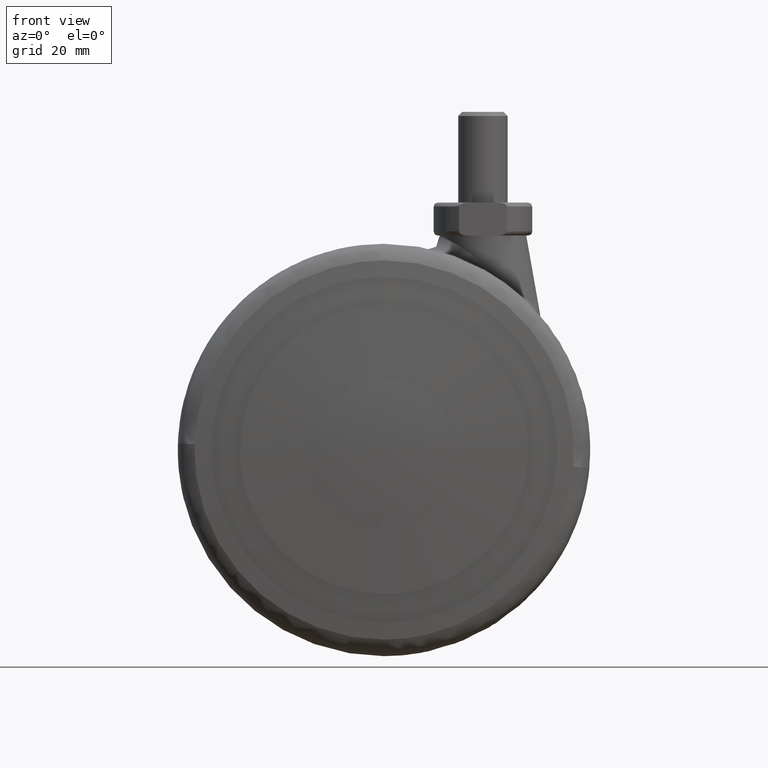
[diagram: clean part render]
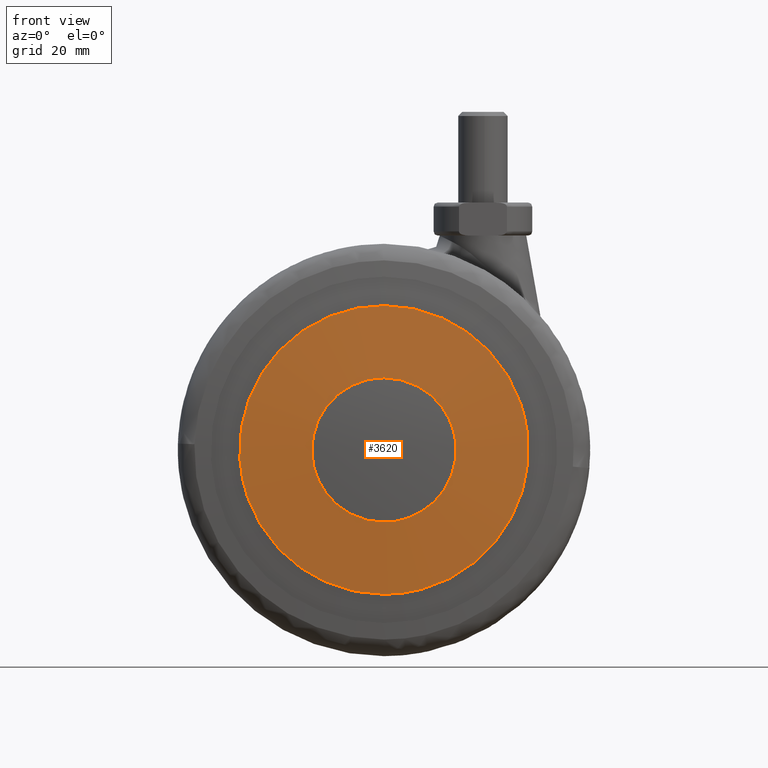
[diagram: same view with one face highlighted and labeled with its STEP entity id]
A machine part, front view. The second image highlights one B-rep face of the part: STEP entity #3620.
In plain terms, the highlighted face is a freeform B-spline surface patch.
Its self-contained STEP definition (entity closure, byte-faithful):
#2124=CARTESIAN_POINT('',(17.377664456268601,-30.499999820000049,2.065598838515968));
#2125=VERTEX_POINT('',#2124);
#2126=CARTESIAN_POINT('',(0.0,-30.499999820000049,-17.499998833836450));
#2127=VERTEX_POINT('',#2126);
#2128=CARTESIAN_POINT('',(17.377664456268594,-30.499999820000049,2.065598838515969));
#2129=CARTESIAN_POINT('',(17.499997765615014,-30.499999820000049,1.036421897906469));
#2130=CARTESIAN_POINT('',(17.499997798101671,-30.499999820000049,-0.000000123112778));
#2131=CARTESIAN_POINT('',(17.499998346639302,-30.499999820000046,-17.499998891747214));
#2132=CARTESIAN_POINT('',(0.0,-30.499999820000049,-17.499998833836450));
#2140=(BOUNDED_CURVE()B_SPLINE_CURVE(2,(#2128,#2129,#2130,#2131,#2132),.UNSPECIFIED.,.F.,.U.)B_SPLINE_CURVE_WITH_KNOTS((3,2,3),(0.229562473514925,0.250000000000000,0.500000000000000),.UNSPECIFIED.)CURVE()GEOMETRIC_REPRESENTATION_ITEM()RATIONAL_B_SPLINE_CURVE((0.956026754186476,0.976055948332805,1.0,0.707106781186547,1.0))REPRESENTATION_ITEM(''));
#2141=EDGE_CURVE('',#2125,#2127,#2140,.T.);
#2182=CARTESIAN_POINT('',(-17.467357814812079,-30.499999819976811,-1.068331168380305));
#2183=VERTEX_POINT('',#2182);
#2189=CARTESIAN_POINT('',(0.0,-30.499999820000049,-17.499998833836450));
#2190=CARTESIAN_POINT('',(-16.462371645839585,-30.499999819988442,-17.499998800113580));
#2191=CARTESIAN_POINT('',(-17.467357814812075,-30.499999819976814,-1.068331168380304));
#2199=(BOUNDED_CURVE()B_SPLINE_CURVE(2,(#2189,#2190,#2191),.UNSPECIFIED.,.F.,.U.)B_SPLINE_CURVE_WITH_KNOTS((3,3),(0.500000000000000,0.739333141382352),.UNSPECIFIED.)CURVE()GEOMETRIC_REPRESENTATION_ITEM()RATIONAL_B_SPLINE_CURVE((1.0,0.719603783407151,0.976072425605445))REPRESENTATION_ITEM(''));
#2200=EDGE_CURVE('',#2127,#2183,#2199,.T.);
#2223=CARTESIAN_POINT('',(0.0,-30.499999820000049,17.499998833836450));
#2224=VERTEX_POINT('',#2223);
#2225=CARTESIAN_POINT('',(0.0,-30.499999820000049,17.499998833836450));
#2226=CARTESIAN_POINT('',(15.543052619787943,-30.499999820000046,17.499998768634430));
#2227=CARTESIAN_POINT('',(17.377664456268594,-30.499999820000049,2.065598838515969));
#2235=(BOUNDED_CURVE()B_SPLINE_CURVE(2,(#2225,#2226,#2227),.UNSPECIFIED.,.F.,.U.)B_SPLINE_CURVE_WITH_KNOTS((3,3),(0.0,0.229562473514925),.UNSPECIFIED.)CURVE()GEOMETRIC_REPRESENTATION_ITEM()RATIONAL_B_SPLINE_CURVE((1.0,0.731050832853743,0.956026754186476))REPRESENTATION_ITEM(''));
#2236=EDGE_CURVE('',#2224,#2125,#2235,.T.);
#2238=CARTESIAN_POINT('',(-17.467357814812075,-30.499999819976814,-1.068331168380304));
#2239=CARTESIAN_POINT('',(-17.499997746936184,-30.499999819977155,-0.534664162774841));
#2240=CARTESIAN_POINT('',(-17.499997763781881,-30.499999819977511,0.000000065446225));
#2241=CARTESIAN_POINT('',(-17.499998315155445,-30.499999819989128,17.499998865559796));
#2242=CARTESIAN_POINT('',(0.0,-30.499999820000049,17.499998833836450));
#2250=(BOUNDED_CURVE()B_SPLINE_CURVE(2,(#2238,#2239,#2240,#2241,#2242),.UNSPECIFIED.,.F.,.U.)B_SPLINE_CURVE_WITH_KNOTS((3,2,3),(0.739333141382352,0.750000000000000,1.0),.UNSPECIFIED.)CURVE()GEOMETRIC_REPRESENTATION_ITEM()RATIONAL_B_SPLINE_CURVE((0.976072425605445,0.987502997779396,1.0,0.707106781186547,1.0))REPRESENTATION_ITEM(''));
#2251=EDGE_CURVE('',#2183,#2224,#2250,.T.);
#2310=CARTESIAN_POINT('',(34.755336304148187,-29.429466281998341,4.131173971761895));
#2311=VERTEX_POINT('',#2310);
#2312=CARTESIAN_POINT('',(0.0,-29.429466281994149,-35.0));
#2313=VERTEX_POINT('',#2312);
#2314=CARTESIAN_POINT('',(34.755336304148194,-29.429466281998337,4.131173971761895));
#2315=CARTESIAN_POINT('',(34.999999999999993,-29.429466281994156,2.072831939068230));
#2316=CARTESIAN_POINT('',(35.0,-29.429466281994149,0.0));
#2317=CARTESIAN_POINT('',(34.999999999999993,-29.429466281994156,-34.999999999999993));
#2318=CARTESIAN_POINT('',(0.0,-29.429466281994149,-35.0));
#2326=(BOUNDED_CURVE()B_SPLINE_CURVE(2,(#2314,#2315,#2316,#2317,#2318),.UNSPECIFIED.,.F.,.U.)B_SPLINE_CURVE_WITH_KNOTS((3,2,3),(0.229562591392399,0.250000000000000,0.500000000000000),.UNSPECIFIED.)CURVE()GEOMETRIC_REPRESENTATION_ITEM()RATIONAL_B_SPLINE_CURVE((0.956026985231279,0.976056086434856,1.0,0.707106781186548,1.0))REPRESENTATION_ITEM(''));
#2327=EDGE_CURVE('',#2311,#2313,#2326,.T.);
#2329=CARTESIAN_POINT('',(-34.934720181211787,-29.429466281988251,-2.136662317515716));
#2330=VERTEX_POINT('',#2329);
#2331=CARTESIAN_POINT('',(0.0,-29.429466281994149,-35.0));
#2332=CARTESIAN_POINT('',(-32.924746868442831,-29.429466281994159,-34.999999999999993));
#2333=CARTESIAN_POINT('',(-34.934720181211787,-29.429466281988248,-2.136662317515716));
#2341=(BOUNDED_CURVE()B_SPLINE_CURVE(2,(#2331,#2332,#2333),.UNSPECIFIED.,.F.,.U.)B_SPLINE_CURVE_WITH_KNOTS((3,3),(0.500000000000000,0.739333142846890),.UNSPECIFIED.)CURVE()GEOMETRIC_REPRESENTATION_ITEM()RATIONAL_B_SPLINE_CURVE((1.0,0.719603781691338,0.976072428744235))REPRESENTATION_ITEM(''));
#2342=EDGE_CURVE('',#2313,#2330,#2341,.T.);
#2409=CARTESIAN_POINT('',(0.0,-29.429466281994149,35.0));
#2410=VERTEX_POINT('',#2409);
#2411=CARTESIAN_POINT('',(0.0,-29.429466281994149,35.0));
#2412=CARTESIAN_POINT('',(31.086130242943007,-29.429466281994166,35.0));
#2413=CARTESIAN_POINT('',(34.755336304148187,-29.429466281998344,4.131173971761895));
#2421=(BOUNDED_CURVE()B_SPLINE_CURVE(2,(#2411,#2412,#2413),.UNSPECIFIED.,.F.,.U.)B_SPLINE_CURVE_WITH_KNOTS((3,3),(0.0,0.229562591392399),.UNSPECIFIED.)CURVE()GEOMETRIC_REPRESENTATION_ITEM()RATIONAL_B_SPLINE_CURVE((1.0,0.731050694751692,0.956026985231279))REPRESENTATION_ITEM(''));
#2422=EDGE_CURVE('',#2410,#2311,#2421,.T.);
#2456=CARTESIAN_POINT('',(-34.934720181211787,-29.429466281988248,-2.136662317515716));
#2457=CARTESIAN_POINT('',(-35.000000000000007,-29.429466281994156,-1.069328381085897));
#2458=CARTESIAN_POINT('',(-35.0,-29.429466281994149,0.0));
#2459=CARTESIAN_POINT('',(-34.999999999999993,-29.429466281994156,34.999999999999993));
#2460=CARTESIAN_POINT('',(0.0,-29.429466281994149,35.0));
#2468=(BOUNDED_CURVE()B_SPLINE_CURVE(2,(#2456,#2457,#2458,#2459,#2460),.UNSPECIFIED.,.F.,.U.)B_SPLINE_CURVE_WITH_KNOTS((3,2,3),(0.739333142846890,0.750000000000000,1.0),.UNSPECIFIED.)CURVE()GEOMETRIC_REPRESENTATION_ITEM()RATIONAL_B_SPLINE_CURVE((0.976072428744235,0.987502999495210,1.0,0.707106781186548,1.0))REPRESENTATION_ITEM(''));
#2469=EDGE_CURVE('',#2330,#2410,#2468,.T.);
#3584=CARTESIAN_POINT('',(-38.405199736858599,-27.412246265986134,-38.406046254825903));
#3585=CARTESIAN_POINT('',(-19.241126082348856,-29.130756243555190,-38.483100381035676));
#3586=CARTESIAN_POINT('',(19.241238964752032,-29.130756243555190,-38.483100381035676));
#3587=CARTESIAN_POINT('',(38.405424147331011,-27.412226142249498,-38.406045352522796));
#3588=CARTESIAN_POINT('',(-38.482255568291713,-29.130832154340368,-19.241551892352344));
#3589=CARTESIAN_POINT('',(-19.279808906130938,-30.856251999999809,-19.280233866937198));
#3590=CARTESIAN_POINT('',(19.279922015475620,-30.856251999999809,-19.280233866937198));
#3591=CARTESIAN_POINT('',(38.482480427205218,-29.130811949770560,-19.241551439388601));
#3592=CARTESIAN_POINT('',(-38.482255568291713,-29.130832154340368,19.241555419606819));
#3593=CARTESIAN_POINT('',(-19.279808906130938,-30.856251999999809,19.280237401282641));
#3594=CARTESIAN_POINT('',(19.279922015475620,-30.856251999999809,19.280237401282641));
#3595=CARTESIAN_POINT('',(38.482480427205218,-29.130811949770550,19.241554966642994));
#3596=CARTESIAN_POINT('',(-38.405199708664298,-27.412245637164521,38.406053267014130));
#3597=CARTESIAN_POINT('',(-19.241126068195065,-29.130755612207800,38.483107407235750));
#3598=CARTESIAN_POINT('',(19.241238950598156,-29.130755612207800,38.483107407235750));
#3599=CARTESIAN_POINT('',(38.405424119136512,-27.412225513427881,38.406052364710817));
#3607=(BOUNDED_SURFACE()B_SPLINE_SURFACE(2,2,((#3584,#3588,#3592,#3596),(#3585,#3589,#3593,#3597),(#3586,#3590,#3594,#3598),(#3587,#3591,#3595,#3599)),.UNSPECIFIED.,.F.,.F.,.U.)B_SPLINE_SURFACE_WITH_KNOTS((3,1,3),(3,1,3),(153.107659277343710,190.694805514751490,228.282172265625010),(153.106830790710490,190.694805514751610,228.282787129211410),.UNSPECIFIED.)GEOMETRIC_REPRESENTATION_ITEM()RATIONAL_B_SPLINE_SURFACE(((1.004020759596651,1.002010335486517,1.002010335486517,1.004020760333730),(1.002010424110134,1.0,1.0,1.002010424847214),(1.002010424110134,1.0,1.0,1.002010424847214),(1.004020783184892,1.002010359074758,1.002010359074758,1.004020783921972)))REPRESENTATION_ITEM('')SURFACE());
#3608=ORIENTED_EDGE('',*,*,#2469,.F.);
#3609=ORIENTED_EDGE('',*,*,#2342,.F.);
#3610=ORIENTED_EDGE('',*,*,#2327,.F.);
#3611=ORIENTED_EDGE('',*,*,#2422,.F.);
#3612=EDGE_LOOP('',(#3608,#3609,#3610,#3611));
#3613=FACE_OUTER_BOUND('',#3612,.T.);
#3614=ORIENTED_EDGE('',*,*,#2200,.T.);
#3615=ORIENTED_EDGE('',*,*,#2251,.T.);
#3616=ORIENTED_EDGE('',*,*,#2236,.T.);
#3617=ORIENTED_EDGE('',*,*,#2141,.T.);
#3618=EDGE_LOOP('',(#3614,#3615,#3616,#3617));
#3619=FACE_BOUND('',#3618,.T.);
#3620=ADVANCED_FACE('',(#3613,#3619),#3607,.T.);